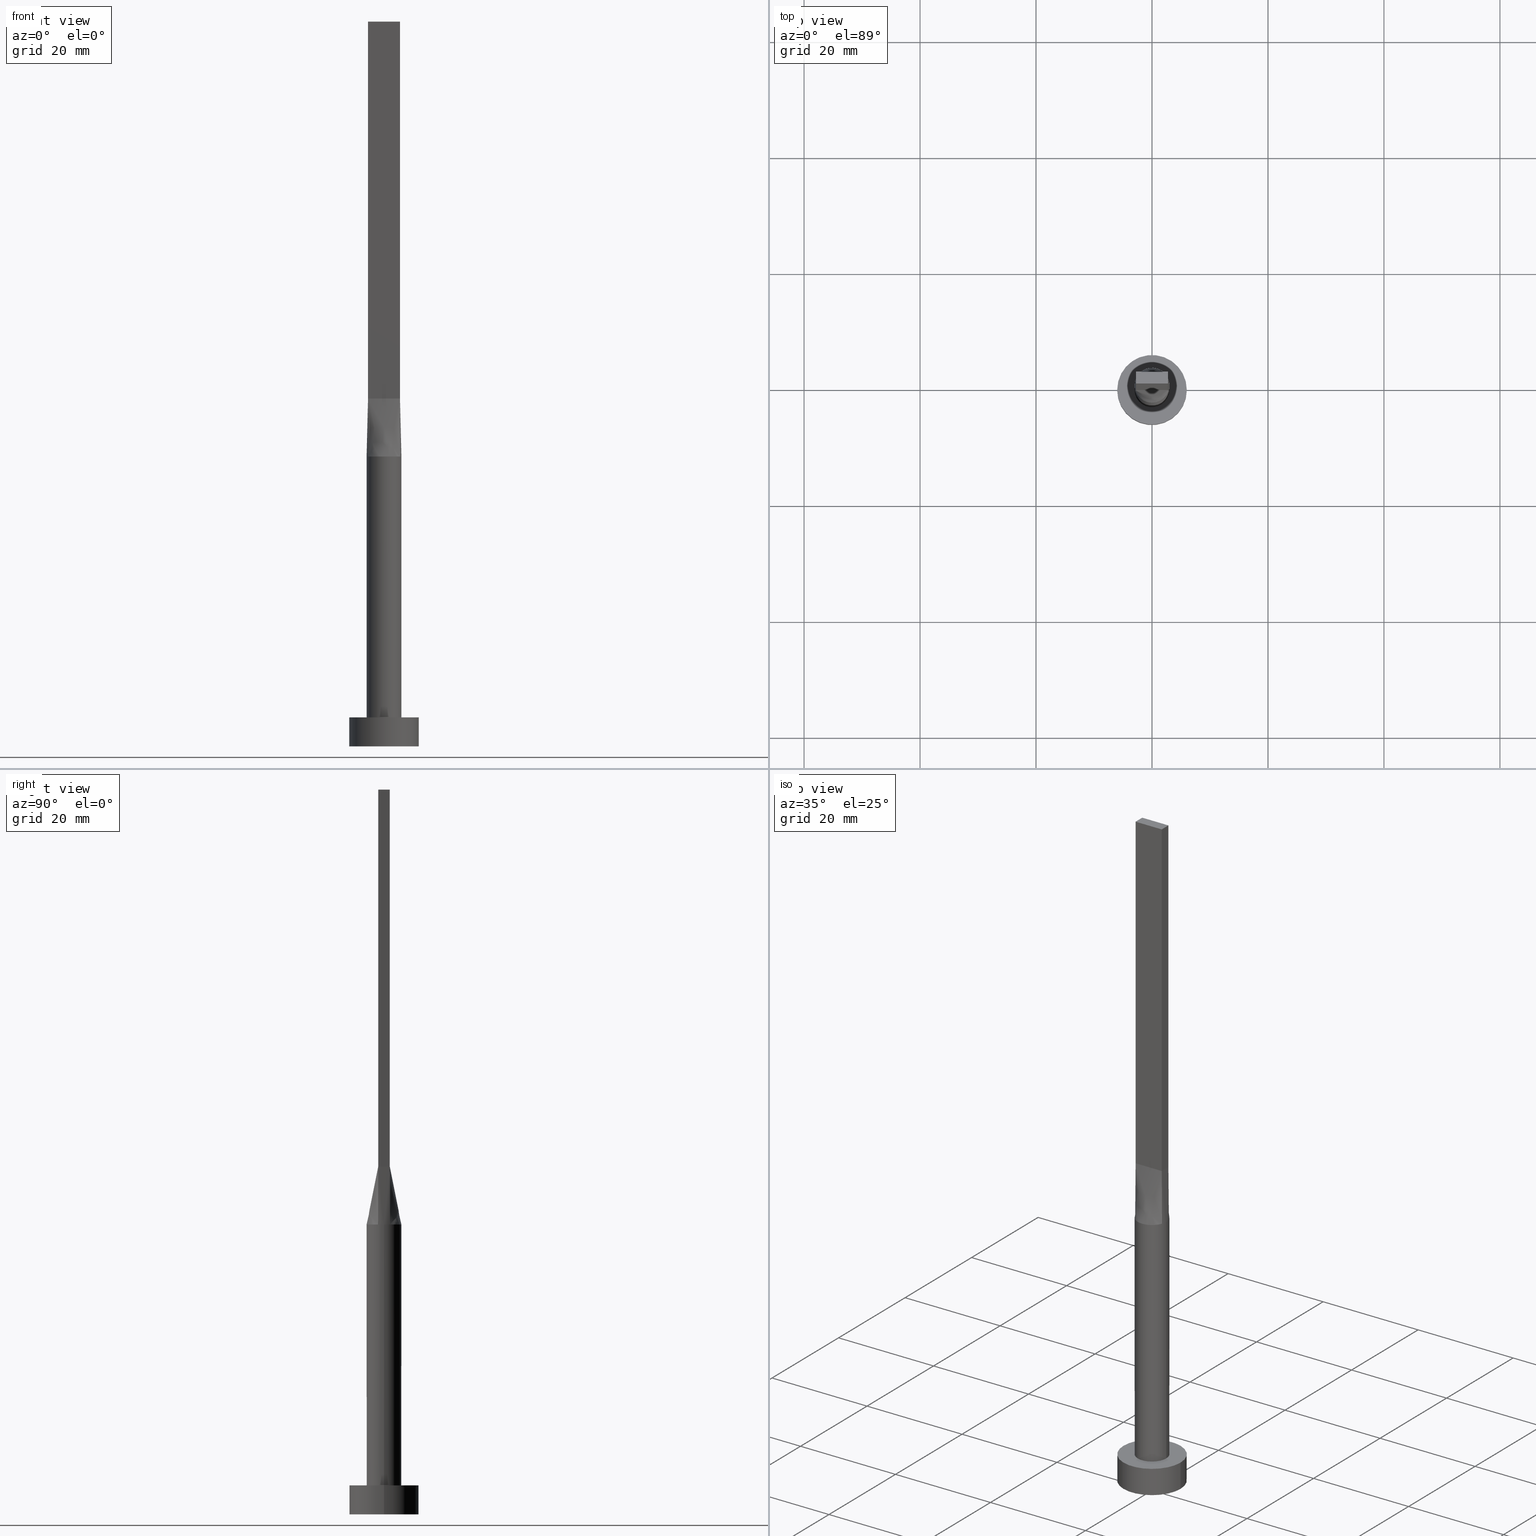
[diagram: canonical four-view strip — front | top / right | iso, engineering-drawing reading convention]
A machine part, canonical four-view strip (front | top / right | iso — engineering-drawing reading convention). The complete STEP part file that produces these views, byte-faithful:
ISO-10303-21;
HEADER;
FILE_DESCRIPTION (( 'STEP AP203' ),
    '1' );
FILE_NAME ('853d.STEP',
    '2023-02-13T10:48:58',
    ( '' ),
    ( '' ),
    'SwSTEP 2.0',
    'SolidWorks 2019',
    '' );
FILE_SCHEMA (( 'CONFIG_CONTROL_DESIGN' ));
ENDSEC;

DATA;
#1 = DIRECTION ( 'NONE',  ( 1.000000000000000000, 0.000000000000000000, 0.000000000000000000 ) ) ;
#2 = CARTESIAN_POINT ( 'NONE',  ( -2.739088299662392423, 1.246032108968142316, 49.99999999999998579 ) ) ;
#3 = VECTOR ( 'NONE', #481, 1000.000000000000000 ) ;
#4 = CARTESIAN_POINT ( 'NONE',  ( -0.9166666666666664076, -0.9999999999999995559, 60.00000000000000000 ) ) ;
#5 = DIRECTION ( 'NONE',  ( 0.000000000000000000, 0.000000000000000000, 1.000000000000000000 ) ) ;
#6 = FACE_OUTER_BOUND ( 'NONE', #76, .T. ) ;
#7 = CARTESIAN_POINT ( 'NONE',  ( 0.000000000000000000, 0.000000000000000000, 0.000000000000000000 ) ) ;
#8 = ADVANCED_FACE ( 'NONE', ( #210 ), #292, .T. ) ;
#9 = CARTESIAN_POINT ( 'NONE',  ( 1.604166666666669183, 1.000000000000000000, 60.00000000000000000 ) ) ;
#10 = VECTOR ( 'NONE', #325, 1000.000000000000000 ) ;
#11 = CARTESIAN_POINT ( 'NONE',  ( -2.784690135232655628, 1.012614594630056430, 54.99999999999999289 ) ) ;
#12 = CARTESIAN_POINT ( 'NONE',  ( -2.750000000000000000, -0.9999999999999993339, 125.0000000000000000 ) ) ;
#13 = FACE_OUTER_BOUND ( 'NONE', #71, .T. ) ;
#14 = AXIS2_PLACEMENT_3D ( 'NONE', #131, #129, #497 ) ;
#15 =( NAMED_UNIT ( * ) SI_UNIT ( $, .STERADIAN. ) SOLID_ANGLE_UNIT ( ) );
#16 = CARTESIAN_POINT ( 'NONE',  ( 2.739088299662392867, 1.246032108968142538, 50.00000000000000711 ) ) ;
#17 = ADVANCED_FACE ( 'NONE', ( #88 ), #264, .T. ) ;
#18 = PLANE ( 'NONE',  #385 ) ;
#19 = CARTESIAN_POINT ( 'NONE',  ( -2.819429393986302657, 1.025247261300842760, 49.99999999999999289 ) ) ;
#20 = CARTESIAN_POINT ( 'NONE',  ( -2.115507543051069916, 2.149870311632977593, 49.99999999999999289 ) ) ;
#21 = DATE_AND_TIME ( #470, #183 ) ;
#22 = VECTOR ( 'NONE', #152, 1000.000000000000000 ) ;
#23 = VERTEX_POINT ( 'NONE', #453 ) ;
#24 = LINE ( 'NONE', #209, #3 ) ;
#25 = DIRECTION ( 'NONE',  ( -0.000000000000000000, -0.000000000000000000, -1.000000000000000000 ) ) ;
#26 = CALENDAR_DATE ( 2023, 13, 2 ) ;
#27 = VERTEX_POINT ( 'NONE', #219 ) ;
#28 = EDGE_CURVE ( 'NONE', #197, #564, #571, .T. ) ;
#29 = CARTESIAN_POINT ( 'NONE',  ( -2.936168591633194769, 0.7040613060484341990, 49.99999999999999289 ) ) ;
#30 = LINE ( 'NONE', #70, #339 ) ;
#31 = ORIENTED_EDGE ( 'NONE', *, *, #239, .T. ) ;
#32 = CARTESIAN_POINT ( 'NONE',  ( 0.000000000000000000, 0.000000000000000000, 125.0000000000000000 ) ) ;
#33 = ORIENTED_EDGE ( 'NONE', *, *, #34, .F. ) ;
#34 = EDGE_CURVE ( 'NONE', #484, #295, #172, .T. ) ;
#35 = LINE ( 'NONE', #201, #376 ) ;
#36 = DATE_AND_TIME ( #422, #258 ) ;
#37 = ORIENTED_EDGE ( 'NONE', *, *, #34, .T. ) ;
#38 = ORIENTED_EDGE ( 'NONE', *, *, #530, .F. ) ;
#39 = CARTESIAN_POINT ( 'NONE',  ( -1.145833333333333037, -0.9999999999999995559, 60.00000000000000000 ) ) ;
#40 = EDGE_CURVE ( 'NONE', #477, #27, #534, .T. ) ;
#41 = VECTOR ( 'NONE', #25, 1000.000000000000000 ) ;
#42 = EDGE_LOOP ( 'NONE', ( #461, #73 ) ) ;
#43 = LINE ( 'NONE', #162, #41 ) ;
#44 = CARTESIAN_POINT ( 'NONE',  ( -2.520833333333333037, -0.9999999999999993339, 60.00000000000000000 ) ) ;
#45 = CARTESIAN_POINT ( 'NONE',  ( -0.2291666666666636321, 1.000000000000000000, 59.99999999999999289 ) ) ;
#46 = CARTESIAN_POINT ( 'NONE',  ( 2.750000000000000000, -1.000000000000000000, 60.00000000000000000 ) ) ;
#47 = CARTESIAN_POINT ( 'NONE',  ( -2.291666666666664742, 1.000000000000000000, 60.00000000000000000 ) ) ;
#48 = EDGE_CURVE ( 'NONE', #373, #477, #252, .T. ) ;
#49 = CARTESIAN_POINT ( 'NONE',  ( -1.604166666666666519, -0.9999999999999995559, 60.00000000000000000 ) ) ;
#50 = PLANE ( 'NONE',  #98 ) ;
#51 = CARTESIAN_POINT ( 'NONE',  ( -2.739088299662392423, 1.246032108968142316, 49.99999999999998579 ) ) ;
#52 = CARTESIAN_POINT ( 'NONE',  ( 2.819430526142641558, -1.025247683279451261, 49.99999999999999289 ) ) ;
#53 = AXIS2_PLACEMENT_3D ( 'NONE', #460, #62, #60 ) ;
#54 = CARTESIAN_POINT ( 'NONE',  ( -0.3502136323054376721, 2.999999999999999112, 50.00000000000001421 ) ) ;
#55 = ORIENTED_EDGE ( 'NONE', *, *, #492, .T. ) ;
#56 = B_SPLINE_SURFACE_WITH_KNOTS ( 'NONE', 3, 1, ( 
 ( #516, #419 ),
 ( #29, #546 ),
 ( #141, #277 ),
 ( #463, #331 ),
 ( #228, #327 ),
 ( #377, #551 ) ),
 .UNSPECIFIED., .F., .F., .F.,
 ( 4, 2, 4 ),
 ( 2, 2 ),
 ( 0.000000000000000000, 0.5000000000000000000, 1.000000000000000000 ),
 ( 0.000000000000000000, 1.000000000000000000 ),
 .UNSPECIFIED. ) ;
#57 = CC_DESIGN_PERSON_AND_ORGANIZATION_ASSIGNMENT ( #247, #333, ( #315 ) ) ;
#58 = CARTESIAN_POINT ( 'NONE',  ( -1.627925520694712747, 2.539128397820341831, 50.00000000000000000 ) ) ;
#59 = CIRCLE ( 'NONE', #442, 3.000000000000000444 ) ;
#60 = DIRECTION ( 'NONE',  ( 2.168404344971009608E-16, 1.000000000000000000, 0.000000000000000000 ) ) ;
#61 = EDGE_LOOP ( 'NONE', ( #375, #65, #296, #137 ) ) ;
#62 = DIRECTION ( 'NONE',  ( 1.000000000000000000, -2.168404344971009608E-16, 0.000000000000000000 ) ) ;
#63 = CARTESIAN_POINT ( 'NONE',  ( 6.000000000000000888, 7.347880794884120722E-16, 5.000000000000000000 ) ) ;
#64 = APPROVAL_ROLE ( '' ) ;
#65 = ORIENTED_EDGE ( 'NONE', *, *, #40, .T. ) ;
#66 = DIRECTION ( 'NONE',  ( -0.000000000000000000, -0.000000000000000000, -1.000000000000000000 ) ) ;
#67 = COORDINATED_UNIVERSAL_TIME_OFFSET ( 1, 0, .AHEAD. ) ;
#68 = ADVANCED_FACE ( 'NONE', ( #262 ), #116, .T. ) ;
#69 = DIRECTION ( 'NONE',  ( -1.000000000000000000, 7.885106708985487801E-17, 0.000000000000000000 ) ) ;
#70 = CARTESIAN_POINT ( 'NONE',  ( -2.750000000000000000, -0.9999999999999993339, 60.00000000000000000 ) ) ;
#71 = EDGE_LOOP ( 'NONE', ( #37, #503, #322, #260 ) ) ;
#72 = CARTESIAN_POINT ( 'NONE',  ( -2.750000000000000000, -0.9999999999999993339, 60.00000000000000000 ) ) ;
#73 = ORIENTED_EDGE ( 'NONE', *, *, #134, .T. ) ;
#74 = EDGE_CURVE ( 'NONE', #515, #253, #147, .T. ) ;
#75 = DIRECTION ( 'NONE',  ( -1.000000000000000000, 0.000000000000000000, 0.000000000000000000 ) ) ;
#76 = EDGE_LOOP ( 'NONE', ( #330, #519, #438, #158 ) ) ;
#77 = EDGE_LOOP ( 'NONE', ( #110, #560, #254, #286, #395 ) ) ;
#78 = EDGE_CURVE ( 'NONE', #120, #484, #181, .T. ) ;
#79 = ORIENTED_EDGE ( 'NONE', *, *, #389, .F. ) ;
#80 = CIRCLE ( 'NONE', #410, 6.000000000000000888 ) ;
#81 = CARTESIAN_POINT ( 'NONE',  ( -2.749999999999999556, 1.000000000000000000, 60.00000000000000000 ) ) ;
#82 = CARTESIAN_POINT ( 'NONE',  ( 0.000000000000000000, 0.000000000000000000, 0.000000000000000000 ) ) ;
#83 = PLANE ( 'NONE',  #314 ) ;
#84 = CARTESIAN_POINT ( 'NONE',  ( 1.145833333333333703, -0.9999999999999995559, 60.00000000000000000 ) ) ;
#85 = CARTESIAN_POINT ( 'NONE',  ( -2.314486317179579977, 1.928337902455808051, 50.00000000000000711 ) ) ;
#86 = CARTESIAN_POINT ( 'NONE',  ( 2.750000000000000000, -0.9999999999999997780, 60.00000000000000000 ) ) ;
#87 = CARTESIAN_POINT ( 'NONE',  ( 2.819380270465311700, 1.025229189260113083, 49.99999999999999289 ) ) ;
#88 = FACE_OUTER_BOUND ( 'NONE', #326, .T. ) ;
#89 = DIRECTION ( 'NONE',  ( 0.000000000000000000, -0.000000000000000000, -1.000000000000000000 ) ) ;
#90 = ORGANIZATION ( 'NEUR�EN�', 'NEUR�EN�', '' ) ;
#91 = CARTESIAN_POINT ( 'NONE',  ( -0.2291666666666662966, -0.9999999999999995559, 60.00000000000000000 ) ) ;
#92 = FACE_OUTER_BOUND ( 'NONE', #392, .T. ) ;
#93 = DIRECTION ( 'NONE',  ( 1.000000000000000000, 0.000000000000000000, 0.000000000000000000 ) ) ;
#94 = CC_DESIGN_PERSON_AND_ORGANIZATION_ASSIGNMENT ( #214, #173, ( #324 ) ) ;
#95 = CARTESIAN_POINT ( 'NONE',  ( 2.314486317179579977, 1.928337902455807384, 50.00000000000001421 ) ) ;
#96 = DIRECTION ( 'NONE',  ( 0.006937837988376408145, -0.002522850177591348404, 0.9999727504442450510 ) ) ;
#97 = VERTEX_POINT ( 'NONE', #142 ) ;
#98 = AXIS2_PLACEMENT_3D ( 'NONE', #533, #541, #89 ) ;
#99 = DIRECTION ( 'NONE',  ( -0.000000000000000000, -0.000000000000000000, -1.000000000000000000 ) ) ;
#100 = DIRECTION ( 'NONE',  ( 0.000000000000000000, 0.000000000000000000, 1.000000000000000000 ) ) ;
#101 = CARTESIAN_POINT ( 'NONE',  ( 2.749999999999999556, 1.000000000000000000, 125.0000000000000000 ) ) ;
#102 = EDGE_CURVE ( 'NONE', #249, #165, #225, .T. ) ;
#103 = FACE_OUTER_BOUND ( 'NONE', #553, .T. ) ;
#104 = COORDINATED_UNIVERSAL_TIME_OFFSET ( 1, 0, .AHEAD. ) ;
#105 = DIRECTION ( 'NONE',  ( -0.000000000000000000, -0.000000000000000000, -1.000000000000000000 ) ) ;
#106 = COORDINATED_UNIVERSAL_TIME_OFFSET ( 1, 0, .AHEAD. ) ;
#107 = ORIENTED_EDGE ( 'NONE', *, *, #381, .F. ) ;
#108 = LOCAL_TIME ( 11, 48, 58.00000000000000000, #168 ) ;
#109 = DIRECTION ( 'NONE',  ( 0.000000000000000000, 0.000000000000000000, 1.000000000000000000 ) ) ;
#110 = ORIENTED_EDGE ( 'NONE', *, *, #381, .T. ) ;
#111 = EDGE_CURVE ( 'NONE', #253, #484, #370, .T. ) ;
#112 = CARTESIAN_POINT ( 'NONE',  ( 2.750000000000000000, -0.9999999999999997780, 125.0000000000000000 ) ) ;
#113 = PERSON_AND_ORGANIZATION_ROLE ( 'creator' ) ;
#114 = EDGE_LOOP ( 'NONE', ( #567, #245, #55, #279 ) ) ;
#115 = ADVANCED_BREP_SHAPE_REPRESENTATION ( '853d', ( #298, #237 ), #248 ) ;
#116 = B_SPLINE_SURFACE_WITH_KNOTS ( 'NONE', 3, 1, ( 
 ( #313, #46 ),
 ( #547, #552 ),
 ( #372, #270 ),
 ( #418, #221 ),
 ( #332, #545 ),
 ( #421, #409 ) ),
 .UNSPECIFIED., .F., .F., .F.,
 ( 4, 2, 4 ),
 ( 2, 2 ),
 ( 0.000000000000000000, 0.5000000000000000000, 1.000000000000000000 ),
 ( 0.000000000000000000, 1.000000000000000000 ),
 .UNSPECIFIED. ) ;
#117 = LINE ( 'NONE', #558, #471 ) ;
#118 = VERTEX_POINT ( 'NONE', #511 ) ;
#119 = VECTOR ( 'NONE', #382, 1000.000000000000000 ) ;
#120 = VERTEX_POINT ( 'NONE', #19 ) ;
#121 = DIRECTION ( 'NONE',  ( 1.000000000000000000, 0.000000000000000000, 0.000000000000000000 ) ) ;
#122 = EDGE_CURVE ( 'NONE', #118, #120, #549, .T. ) ;
#123 = CARTESIAN_POINT ( 'NONE',  ( 2.115507543051068140, -2.149870311632976705, 49.99999999999997868 ) ) ;
#124 = AXIS2_PLACEMENT_3D ( 'NONE', #32, #343, #568 ) ;
#125 = CARTESIAN_POINT ( 'NONE',  ( 2.819380270465311700, -1.025229189260112417, 49.99999999999999289 ) ) ;
#126 = CARTESIAN_POINT ( 'NONE',  ( 2.291666666666667407, 1.000000000000000000, 60.00000000000000000 ) ) ;
#127 = CARTESIAN_POINT ( 'NONE',  ( 0.6998073349918603192, -2.936959335800557902, 50.00000000000000000 ) ) ;
#128 = EDGE_CURVE ( 'NONE', #564, #197, #80, .T. ) ;
#129 = DIRECTION ( 'NONE',  ( -0.000000000000000000, -0.000000000000000000, -1.000000000000000000 ) ) ;
#130 = CARTESIAN_POINT ( 'NONE',  ( 0.4583333333333337034, -0.9999999999999995559, 60.00000000000000000 ) ) ;
#131 = CARTESIAN_POINT ( 'NONE',  ( 0.000000000000000000, 0.000000000000000000, 5.000000000000000000 ) ) ;
#132 = CARTESIAN_POINT ( 'NONE',  ( 2.520833333333333037, -1.000000000000000000, 60.00000000000000000 ) ) ;
#133 = CARTESIAN_POINT ( 'NONE',  ( -1.604166666666663410, 1.000000000000000000, 60.00000000000000000 ) ) ;
#134 = EDGE_CURVE ( 'NONE', #167, #23, #561, .T. ) ;
#135 = CC_DESIGN_APPROVAL ( #171, ( #565 ) ) ;
#136 = CARTESIAN_POINT ( 'NONE',  ( -2.819429393986302657, 1.025247261300842760, 49.99999999999999289 ) ) ;
#137 = ORIENTED_EDGE ( 'NONE', *, *, #335, .T. ) ;
#138 = CARTESIAN_POINT ( 'NONE',  ( -1.338960936578149408, 2.706038443291637119, 49.99999999999998579 ) ) ;
#139 = CARTESIAN_POINT ( 'NONE',  ( -3.000000000000000444, 0.000000000000000000, 49.99999999999999289 ) ) ;
#140 = ORIENTED_EDGE ( 'NONE', *, *, #111, .F. ) ;
#141 = CARTESIAN_POINT ( 'NONE',  ( -3.000000000000000444, 0.3523499553598127276, 49.99999999999998579 ) ) ;
#142 = CARTESIAN_POINT ( 'NONE',  ( 3.000000000000000444, 7.514166843208513631E-18, 49.99999999999998579 ) ) ;
#143 = VERTEX_POINT ( 'NONE', #274 ) ;
#144 = PLANE ( 'NONE',  #146 ) ;
#145 = CIRCLE ( 'NONE', #490, 3.000000000000000444 ) ;
#146 = AXIS2_PLACEMENT_3D ( 'NONE', #509, #100, #280 ) ;
#147 = LINE ( 'NONE', #101, #180 ) ;
#148 = ADVANCED_FACE ( 'NONE', ( #13 ), #184, .F. ) ;
#149 = CARTESIAN_POINT ( 'NONE',  ( 2.819412401233197141, 1.025240989080170362, 49.99999999999999289 ) ) ;
#150 = PERSON_AND_ORGANIZATION ( #268, #90 ) ;
#151 = ORIENTED_EDGE ( 'NONE', *, *, #250, .T. ) ;
#152 = DIRECTION ( 'NONE',  ( -2.168404344971008868E-16, 1.000000000000000000, 0.000000000000000000 ) ) ;
#153 = ORIENTED_EDGE ( 'NONE', *, *, #299, .T. ) ;
#154 = APPROVAL ( #487, 'NEUR�EN�' ) ;
#155 = DIRECTION ( 'NONE',  ( 0.000000000000000000, 0.000000000000000000, 1.000000000000000000 ) ) ;
#156 = APPROVAL_DATE_TIME ( #559, #154 ) ;
#157 = AXIS2_PLACEMENT_3D ( 'NONE', #170, #105, #287 ) ;
#158 = ORIENTED_EDGE ( 'NONE', *, *, #456, .F. ) ;
#159 = APPROVAL_PERSON_ORGANIZATION ( #202, #171, #512 ) ;
#160 = CARTESIAN_POINT ( 'NONE',  ( 0.000000000000000000, 0.000000000000000000, 49.99999999999999289 ) ) ;
#161 = ORIENTED_EDGE ( 'NONE', *, *, #525, .T. ) ;
#162 = CARTESIAN_POINT ( 'NONE',  ( 3.000000000000000444, 3.673940397442059868E-16, 49.99999999999999289 ) ) ;
#163 = EDGE_LOOP ( 'NONE', ( #241, #153, #436, #194, #524, #251 ) ) ;
#164 = DESIGN_CONTEXT ( 'detailed design', #365, 'design' ) ;
#165 = VERTEX_POINT ( 'NONE', #227 ) ;
#166 = ADVANCED_FACE ( 'NONE', ( #420, #374 ), #18, .T. ) ;
#167 = VERTEX_POINT ( 'NONE', #63 ) ;
#168 = COORDINATED_UNIVERSAL_TIME_OFFSET ( 1, 0, .AHEAD. ) ;
#169 = CARTESIAN_POINT ( 'NONE',  ( 0.9166666666666669627, -0.9999999999999995559, 60.00000000000000000 ) ) ;
#170 = CARTESIAN_POINT ( 'NONE',  ( 0.000000000000000000, 0.000000000000000000, 49.99999999999999289 ) ) ;
#171 = APPROVAL ( #347, 'NEUR�EN�' ) ;
#172 = LINE ( 'NONE', #81, #439 ) ;
#173 = PERSON_AND_ORGANIZATION_ROLE ( 'design_owner' ) ;
#174 = CARTESIAN_POINT ( 'NONE',  ( 2.625980160873452540, 1.476334031700886618, 50.00000000000000711 ) ) ;
#175 = CARTESIAN_POINT ( 'NONE',  ( -2.819380270465311700, -1.025229189260111973, 49.99999999999999289 ) ) ;
#176 = DIRECTION ( 'NONE',  ( 0.000000000000000000, 0.000000000000000000, 1.000000000000000000 ) ) ;
#177 = CARTESIAN_POINT ( 'NONE',  ( -2.625980160873452096, 1.476334031700886396, 50.00000000000000711 ) ) ;
#178 = DIRECTION ( 'NONE',  ( -0.006937837988376364777, 0.002522850177591326286, 0.9999727504442450510 ) ) ;
#179 = CARTESIAN_POINT ( 'NONE',  ( -2.749999999999999556, 1.000000000000000000, 60.00000000000000000 ) ) ;
#180 = VECTOR ( 'NONE', #190, 1000.000000000000000 ) ;
#181 = LINE ( 'NONE', #11, #224 ) ;
#182 = DIRECTION ( 'NONE',  ( 1.000000000000000000, -7.885106708985487801E-17, 0.000000000000000000 ) ) ;
#183 = LOCAL_TIME ( 11, 48, 58.00000000000000000, #104 ) ;
#184 = PLANE ( 'NONE',  #53 ) ;
#185 = CARTESIAN_POINT ( 'NONE',  ( 0.3502136323054376721, 3.000000000000000444, 50.00000000000000000 ) ) ;
#186 = CARTESIAN_POINT ( 'NONE',  ( 0.000000000000000000, 0.000000000000000000, 5.000000000000000000 ) ) ;
#187 = CARTESIAN_POINT ( 'NONE',  ( 1.338960936578149630, 2.706038443291637563, 50.00000000000000000 ) ) ;
#188 = CC_DESIGN_PERSON_AND_ORGANIZATION_ASSIGNMENT ( #285, #113, ( #315 ) ) ;
#189 = EDGE_LOOP ( 'NONE', ( #344, #527, #572, #444 ) ) ;
#190 = DIRECTION ( 'NONE',  ( -1.000000000000000000, 0.000000000000000000, 0.000000000000000000 ) ) ;
#191 = ORIENTED_EDGE ( 'NONE', *, *, #269, .T. ) ;
#192 = DIRECTION ( 'NONE',  ( 1.000000000000000000, -1.776356839400250465E-15, 0.000000000000000000 ) ) ;
#193 = APPROVAL_DATE_TIME ( #21, #171 ) ;
#194 = ORIENTED_EDGE ( 'NONE', *, *, #102, .F. ) ;
#195 = PRODUCT_DEFINITION ( 'NEZN�M�', '', #315, #164 ) ;
#196 = CARTESIAN_POINT ( 'NONE',  ( 0.000000000000000000, 0.000000000000000000, 49.99999999999999289 ) ) ;
#197 = VERTEX_POINT ( 'NONE', #232 ) ;
#198 = PLANE ( 'NONE',  #124 ) ;
#199 = DATE_AND_TIME ( #26, #266 ) ;
#200 = ORIENTED_EDGE ( 'NONE', *, *, #312, .T. ) ;
#201 = CARTESIAN_POINT ( 'NONE',  ( 6.000000000000000888, 7.347880794884120722E-16, 5.000000000000000000 ) ) ;
#202 = PERSON_AND_ORGANIZATION ( #268, #90 ) ;
#203 = ORIENTED_EDGE ( 'NONE', *, *, #102, .T. ) ;
#204 = ORIENTED_EDGE ( 'NONE', *, *, #128, .F. ) ;
#205 = ADVANCED_FACE ( 'NONE', ( #489 ), #198, .T. ) ;
#206 = AXIS2_PLACEMENT_3D ( 'NONE', #494, #217, #361 ) ;
#207 = CARTESIAN_POINT ( 'NONE',  ( -2.750000000000000000, -0.9999999999999993339, 60.00000000000000000 ) ) ;
#208 = CIRCLE ( 'NONE', #405, 3.000000000000000444 ) ;
#209 = CARTESIAN_POINT ( 'NONE',  ( 2.749999999999999556, 1.000000000000000000, 60.00000000000000000 ) ) ;
#210 = FACE_OUTER_BOUND ( 'NONE', #61, .T. ) ;
#211 = LINE ( 'NONE', #259, #119 ) ;
#212 = EDGE_CURVE ( 'NONE', #350, #27, #291, .T. ) ;
#213 = CARTESIAN_POINT ( 'NONE',  ( 2.739088299662391979, -1.246032108968142982, 50.00000000000000711 ) ) ;
#214 = PERSON_AND_ORGANIZATION ( #268, #90 ) ;
#215 = CARTESIAN_POINT ( 'NONE',  ( 0.000000000000000000, 0.000000000000000000, 49.99999999999999289 ) ) ;
#216 = CARTESIAN_POINT ( 'NONE',  ( -1.145833333333329929, 1.000000000000000000, 60.00000000000000000 ) ) ;
#217 = DIRECTION ( 'NONE',  ( 0.000000000000000000, 0.000000000000000000, 1.000000000000000000 ) ) ;
#218 = CARTESIAN_POINT ( 'NONE',  ( 1.627925520694712080, 2.539128397820340943, 49.99999999999998579 ) ) ;
#219 = CARTESIAN_POINT ( 'NONE',  ( 2.750000000000000000, -0.9999999999999997780, 60.00000000000000000 ) ) ;
#220 = CARTESIAN_POINT ( 'NONE',  ( -2.819380270465311700, 1.025229189260112861, 49.99999999999999289 ) ) ;
#221 = CARTESIAN_POINT ( 'NONE',  ( 2.749999999999999556, 0.3333333333333328707, 59.99999999999999289 ) ) ;
#222 = EDGE_CURVE ( 'NONE', #97, #118, #145, .T. ) ;
#223 = LINE ( 'NONE', #12, #499 ) ;
#224 = VECTOR ( 'NONE', #96, 1000.000000000000227 ) ;
#225 = LINE ( 'NONE', #139, #10 ) ;
#226 = CARTESIAN_POINT ( 'NONE',  ( 0.000000000000000000, 0.000000000000000000, 5.000000000000000000 ) ) ;
#227 = CARTESIAN_POINT ( 'NONE',  ( -3.000000000000000444, 0.000000000000000000, 5.000000000000000000 ) ) ;
#228 = CARTESIAN_POINT ( 'NONE',  ( -2.936168591633195657, -0.7040613060484334218, 50.00000000000000000 ) ) ;
#229 = ADVANCED_FACE ( 'NONE', ( #103 ), #83, .F. ) ;
#230 = CARTESIAN_POINT ( 'NONE',  ( 2.739088299662392867, 1.246032108968142538, 50.00000000000000711 ) ) ;
#231 = EDGE_LOOP ( 'NONE', ( #432, #31, #387, #33, #480 ) ) ;
#232 = CARTESIAN_POINT ( 'NONE',  ( 6.000000000000000888, 7.347880794884120722E-16, 0.000000000000000000 ) ) ;
#233 = DATE_TIME_ROLE ( 'classification_date' ) ;
#234 = ORIENTED_EDGE ( 'NONE', *, *, #239, .F. ) ;
#235 = CARTESIAN_POINT ( 'NONE',  ( 2.749999999999999556, 1.000000000000000000, 125.0000000000000000 ) ) ;
#236 = VECTOR ( 'NONE', #386, 1000.000000000000000 ) ;
#237 = AXIS2_PLACEMENT_3D ( 'NONE', #82, #580, #121 ) ;
#238 = DIRECTION ( 'NONE',  ( -0.000000000000000000, -0.000000000000000000, -1.000000000000000000 ) ) ;
#239 = EDGE_CURVE ( 'NONE', #249, #373, #526, .T. ) ;
#240 = LINE ( 'NONE', #336, #452 ) ;
#241 = ORIENTED_EDGE ( 'NONE', *, *, #222, .F. ) ;
#242 = FACE_OUTER_BOUND ( 'NONE', #231, .T. ) ;
#243 = CARTESIAN_POINT ( 'NONE',  ( -2.749999999999999556, 1.000000000000000000, 125.0000000000000000 ) ) ;
#244 = DATE_AND_TIME ( #563, #416 ) ;
#245 = ORIENTED_EDGE ( 'NONE', *, *, #352, .T. ) ;
#246 = LINE ( 'NONE', #302, #22 ) ;
#247 = PERSON_AND_ORGANIZATION ( #268, #90 ) ;
#248 =( GEOMETRIC_REPRESENTATION_CONTEXT ( 3 ) GLOBAL_UNCERTAINTY_ASSIGNED_CONTEXT ( ( #575 ) ) GLOBAL_UNIT_ASSIGNED_CONTEXT ( ( #362, #415, #15 ) ) REPRESENTATION_CONTEXT ( 'NONE', 'WORKASPACE' ) );
#249 = VERTEX_POINT ( 'NONE', #518 ) ;
#250 = EDGE_CURVE ( 'NONE', #167, #197, #35, .T. ) ;
#251 = ORIENTED_EDGE ( 'NONE', *, *, #122, .F. ) ;
#252 = CIRCLE ( 'NONE', #206, 3.000000000000000444 ) ;
#253 = VERTEX_POINT ( 'NONE', #243 ) ;
#254 = ORIENTED_EDGE ( 'NONE', *, *, #456, .T. ) ;
#255 = MECHANICAL_CONTEXT ( 'NONE', #536, 'mechanical' ) ;
#256 = VECTOR ( 'NONE', #427, 1000.000000000000000 ) ;
#257 = EDGE_CURVE ( 'NONE', #23, #564, #211, .T. ) ;
#258 = LOCAL_TIME ( 11, 48, 58.00000000000000000, #67 ) ;
#259 = CARTESIAN_POINT ( 'NONE',  ( -6.000000000000000888, 0.000000000000000000, 5.000000000000000000 ) ) ;
#260 = ORIENTED_EDGE ( 'NONE', *, *, #111, .T. ) ;
#261 = DIRECTION ( 'NONE',  ( -0.000000000000000000, -0.000000000000000000, -1.000000000000000000 ) ) ;
#262 = FACE_OUTER_BOUND ( 'NONE', #77, .T. ) ;
#263 = CARTESIAN_POINT ( 'NONE',  ( 2.520833333333333037, 1.000000000000000000, 60.00000000000000000 ) ) ;
#264 = CYLINDRICAL_SURFACE ( 'NONE', #539, 6.000000000000000888 ) ;
#265 = AXIS2_PLACEMENT_3D ( 'NONE', #479, #238, #75 ) ;
#266 = LOCAL_TIME ( 11, 48, 58.00000000000000000, #106 ) ;
#267 = CARTESIAN_POINT ( 'NONE',  ( -0.3502136323054376721, 2.999999999999999112, 50.00000000000001421 ) ) ;
#268 = PERSON ( 'NEUR�EN�', 'NEUR�EN�', 'NEUR�EN�', ('NEUR�EN�'), ('NEUR�EN�'), ('NEUR�EN�') ) ;
#269 = EDGE_CURVE ( 'NONE', #384, #484, #117, .T. ) ;
#270 = CARTESIAN_POINT ( 'NONE',  ( 2.750000000000000000, -0.3333333333333337589, 59.99999999999999289 ) ) ;
#271 = CARTESIAN_POINT ( 'NONE',  ( -2.750000000000000000, -0.9999999999999993339, 125.0000000000000000 ) ) ;
#272 = CARTESIAN_POINT ( 'NONE',  ( 2.314486317179579977, 1.928337902455807384, 50.00000000000001421 ) ) ;
#273 = CARTESIAN_POINT ( 'NONE',  ( -2.520833333333332593, 1.000000000000000000, 60.00000000000000000 ) ) ;
#274 = CARTESIAN_POINT ( 'NONE',  ( -2.750000000000000000, -0.9999999999999993339, 125.0000000000000000 ) ) ;
#275 = ORIENTED_EDGE ( 'NONE', *, *, #212, .T. ) ;
#276 = CC_DESIGN_DATE_AND_TIME_ASSIGNMENT ( #36, #233, ( #565 ) ) ;
#277 = CARTESIAN_POINT ( 'NONE',  ( -2.749999999999999556, 0.3333333333333338144, 59.99999999999999289 ) ) ;
#278 = CARTESIAN_POINT ( 'NONE',  ( -1.627925520694712747, 2.539128397820341831, 50.00000000000000000 ) ) ;
#279 = ORIENTED_EDGE ( 'NONE', *, *, #389, .T. ) ;
#280 = DIRECTION ( 'NONE',  ( 1.000000000000000000, 0.000000000000000000, -0.000000000000000000 ) ) ;
#281 = CARTESIAN_POINT ( 'NONE',  ( -2.625980160873452096, 1.476334031700886396, 50.00000000000000711 ) ) ;
#282 = PERSON_AND_ORGANIZATION ( #268, #90 ) ;
#283 = ORIENTED_EDGE ( 'NONE', *, *, #28, .F. ) ;
#284 = DIRECTION ( 'NONE',  ( 1.000000000000000000, 0.000000000000000000, 0.000000000000000000 ) ) ;
#285 = PERSON_AND_ORGANIZATION ( #268, #90 ) ;
#286 = ORIENTED_EDGE ( 'NONE', *, *, #525, .F. ) ;
#287 = DIRECTION ( 'NONE',  ( -1.000000000000000000, 0.000000000000000000, 0.000000000000000000 ) ) ;
#288 = ORIENTED_EDGE ( 'NONE', *, *, #74, .F. ) ;
#289 = CARTESIAN_POINT ( 'NONE',  ( 0.000000000000000000, 0.000000000000000000, 49.99999999999999289 ) ) ;
#290 = ORIENTED_EDGE ( 'NONE', *, *, #257, .T. ) ;
#291 = LINE ( 'NONE', #394, #236 ) ;
#292 = B_SPLINE_SURFACE_WITH_KNOTS ( 'NONE', 3, 1, ( 
 ( #175, #207 ),
 ( #450, #44 ),
 ( #407, #399 ),
 ( #446, #353 ),
 ( #354, #49 ),
 ( #498, #39 ),
 ( #309, #4 ),
 ( #404, #358 ),
 ( #397, #91 ),
 ( #537, #576 ),
 ( #127, #130 ),
 ( #579, #169 ),
 ( #528, #84 ),
 ( #123, #496 ),
 ( #531, #540 ),
 ( #301, #401 ),
 ( #213, #132 ),
 ( #125, #86 ) ),
 .UNSPECIFIED., .F., .F., .F.,
 ( 4, 2, 2, 2, 2, 2, 2, 2, 4 ),
 ( 2, 2 ),
 ( 0.000000000000000000, 0.1250000000000000000, 0.2500000000000000000, 0.3750000000000000000, 0.5000000000000000000, 0.6250000000000000000, 0.7500000000000000000, 0.8750000000000000000, 1.000000000000000000 ),
 ( 0.000000000000000000, 1.000000000000000000 ),
 .UNSPECIFIED. ) ;
#293 = ORIENTED_EDGE ( 'NONE', *, *, #28, .T. ) ;
#294 = ADVANCED_FACE ( 'NONE', ( #340 ), #476, .T. ) ;
#295 = VERTEX_POINT ( 'NONE', #72 ) ;
#296 = ORIENTED_EDGE ( 'NONE', *, *, #411, .F. ) ;
#297 = PERSON_AND_ORGANIZATION ( #268, #90 ) ;
#298 = MANIFOLD_SOLID_BREP ( 'P�idat vysunut�m5', #478 ) ;
#299 = EDGE_CURVE ( 'NONE', #97, #428, #43, .T. ) ;
#300 = AXIS2_PLACEMENT_3D ( 'NONE', #502, #505, #93 ) ;
#301 = CARTESIAN_POINT ( 'NONE',  ( 2.625980160873452984, -1.476334031700886618, 50.00000000000000711 ) ) ;
#302 = CARTESIAN_POINT ( 'NONE',  ( 2.750000000000000000, -0.9999999999999997780, 125.0000000000000000 ) ) ;
#303 = VECTOR ( 'NONE', #523, 1000.000000000000000 ) ;
#304 = DIRECTION ( 'NONE',  ( -1.000000000000000000, 0.000000000000000000, 0.000000000000000000 ) ) ;
#305 = CARTESIAN_POINT ( 'NONE',  ( 0.2291666666666696550, 1.000000000000000000, 60.00000000000000000 ) ) ;
#306 = CARTESIAN_POINT ( 'NONE',  ( 2.784690135232656072, -1.012614594630056208, 54.99999999999999289 ) ) ;
#307 = DIRECTION ( 'NONE',  ( 1.000000000000000000, 0.000000000000000000, 0.000000000000000000 ) ) ;
#308 = CARTESIAN_POINT ( 'NONE',  ( 2.115507543051069916, 2.149870311632976705, 50.00000000000000711 ) ) ;
#309 = CARTESIAN_POINT ( 'NONE',  ( -1.338960936578150518, -2.706038443291638007, 50.00000000000000000 ) ) ;
#310 = VECTOR ( 'NONE', #178, 1000.000000000000227 ) ;
#311 = CARTESIAN_POINT ( 'NONE',  ( 2.749999999999999556, 1.000000000000000000, 60.00000000000000000 ) ) ;
#312 = EDGE_CURVE ( 'NONE', #515, #384, #430, .T. ) ;
#313 = CARTESIAN_POINT ( 'NONE',  ( 2.819380270465311700, -1.025229189260113083, 49.99999999999999289 ) ) ;
#314 = AXIS2_PLACEMENT_3D ( 'NONE', #112, #562, #445 ) ;
#315 = PRODUCT_DEFINITION_FORMATION_WITH_SPECIFIED_SOURCE ( 'LIBOVOLN�', '', #324, .NOT_KNOWN. ) ;
#316 = DIRECTION ( 'NONE',  ( 1.000000000000000000, 0.000000000000000000, 0.000000000000000000 ) ) ;
#317 = CARTESIAN_POINT ( 'NONE',  ( -2.314486317179579977, 1.928337902455808051, 50.00000000000000711 ) ) ;
#318 = ORIENTED_EDGE ( 'NONE', *, *, #250, .F. ) ;
#319 = DIRECTION ( 'NONE',  ( 1.000000000000000000, -7.885106708985487801E-17, 0.000000000000000000 ) ) ;
#320 = CARTESIAN_POINT ( 'NONE',  ( 0.000000000000000000, 0.000000000000000000, 0.000000000000000000 ) ) ;
#321 = CC_DESIGN_PERSON_AND_ORGANIZATION_ASSIGNMENT ( #150, #435, ( #565 ) ) ;
#322 = ORIENTED_EDGE ( 'NONE', *, *, #352, .F. ) ;
#323 = PLANE ( 'NONE',  #443 ) ;
#324 = PRODUCT ( '853d', '853d', '', ( #255 ) ) ;
#325 = DIRECTION ( 'NONE',  ( -0.000000000000000000, -0.000000000000000000, -1.000000000000000000 ) ) ;
#326 = EDGE_LOOP ( 'NONE', ( #318, #506, #290, #348 ) ) ;
#327 = CARTESIAN_POINT ( 'NONE',  ( -2.750000000000000000, -0.6666666666666657415, 59.99999999999999289 ) ) ;
#328 = AXIS2_PLACEMENT_3D ( 'NONE', #215, #176, #307 ) ;
#329 = DIRECTION ( 'NONE',  ( 0.000000000000000000, 0.000000000000000000, 1.000000000000000000 ) ) ;
#330 = ORIENTED_EDGE ( 'NONE', *, *, #122, .T. ) ;
#331 = CARTESIAN_POINT ( 'NONE',  ( -2.750000000000000000, -0.3333333333333324822, 59.99999999999999289 ) ) ;
#332 = CARTESIAN_POINT ( 'NONE',  ( 2.936168591633195657, 0.7040613060484338659, 50.00000000000000000 ) ) ;
#333 = PERSON_AND_ORGANIZATION_ROLE ( 'design_supplier' ) ;
#334 = VECTOR ( 'NONE', #99, 1000.000000000000000 ) ;
#335 = EDGE_CURVE ( 'NONE', #295, #373, #240, .T. ) ;
#336 = CARTESIAN_POINT ( 'NONE',  ( -2.784690135232656072, -1.012614594630055764, 54.99999999999999289 ) ) ;
#337 = ORIENTED_EDGE ( 'NONE', *, *, #48, .F. ) ;
#338 = DIRECTION ( 'NONE',  ( 7.885106708985487801E-17, 1.000000000000000000, -0.000000000000000000 ) ) ;
#339 = VECTOR ( 'NONE', #319, 1000.000000000000000 ) ;
#340 = FACE_OUTER_BOUND ( 'NONE', #163, .T. ) ;
#341 = PERSON_AND_ORGANIZATION ( #268, #90 ) ;
#342 = EDGE_LOOP ( 'NONE', ( #474, #107, #337, #234, #203, #486 ) ) ;
#343 = DIRECTION ( 'NONE',  ( 0.000000000000000000, 0.000000000000000000, 1.000000000000000000 ) ) ;
#344 = ORIENTED_EDGE ( 'NONE', *, *, #411, .T. ) ;
#345 = APPROVAL ( #466, 'NEUR�EN�' ) ;
#346 = CARTESIAN_POINT ( 'NONE',  ( 2.749999999999999556, 1.000000000000000000, 125.0000000000000000 ) ) ;
#347 = APPROVAL_STATUS ( 'not_yet_approved' ) ;
#348 = ORIENTED_EDGE ( 'NONE', *, *, #128, .T. ) ;
#349 = CIRCLE ( 'NONE', #328, 3.000000000000000444 ) ;
#350 = VERTEX_POINT ( 'NONE', #390 ) ;
#351 = APPLICATION_PROTOCOL_DEFINITION ( 'international standard', 'config_control_design', 1994, #365 ) ;
#352 = EDGE_CURVE ( 'NONE', #253, #143, #355, .T. ) ;
#353 = CARTESIAN_POINT ( 'NONE',  ( -1.833333333333333037, -0.9999999999999995559, 60.00000000000000000 ) ) ;
#354 = CARTESIAN_POINT ( 'NONE',  ( -2.115507543051069472, -2.149870311632975373, 49.99999999999999289 ) ) ;
#355 = LINE ( 'NONE', #566, #256 ) ;
#356 = DIRECTION ( 'NONE',  ( -2.168404344971009854E-16, -1.000000000000000000, 0.000000000000000000 ) ) ;
#357 = CARTESIAN_POINT ( 'NONE',  ( 2.784690135232655628, 1.012614594630056430, 54.99999999999999289 ) ) ;
#358 = CARTESIAN_POINT ( 'NONE',  ( -0.4583333333333330373, -0.9999999999999995559, 60.00000000000000000 ) ) ;
#359 = CARTESIAN_POINT ( 'NONE',  ( -6.000000000000000888, 0.000000000000000000, 0.000000000000000000 ) ) ;
#360 = CARTESIAN_POINT ( 'NONE',  ( -0.6998073349918608743, 2.936959335800557014, 50.00000000000000000 ) ) ;
#361 = DIRECTION ( 'NONE',  ( 1.000000000000000000, 0.000000000000000000, 0.000000000000000000 ) ) ;
#362 =( LENGTH_UNIT ( ) NAMED_UNIT ( * ) SI_UNIT ( .MILLI., .METRE. ) );
#363 = DIRECTION ( 'NONE',  ( 0.000000000000000000, 0.000000000000000000, 1.000000000000000000 ) ) ;
#364 = CARTESIAN_POINT ( 'NONE',  ( 2.625980160873452540, 1.476334031700886618, 50.00000000000000711 ) ) ;
#365 = APPLICATION_CONTEXT ( 'configuration controlled 3d designs of mechanical parts and assemblies' ) ;
#366 = ORIENTED_EDGE ( 'NONE', *, *, #134, .F. ) ;
#367 = CIRCLE ( 'NONE', #472, 6.000000000000000888 ) ;
#368 = FACE_OUTER_BOUND ( 'NONE', #189, .T. ) ;
#369 = CC_DESIGN_DATE_AND_TIME_ASSIGNMENT ( #199, #431, ( #195 ) ) ;
#370 = LINE ( 'NONE', #464, #334 ) ;
#371 = CARTESIAN_POINT ( 'NONE',  ( -2.750000000000000000, -0.9999999999999993339, 125.0000000000000000 ) ) ;
#372 = CARTESIAN_POINT ( 'NONE',  ( 3.000000000000000444, -0.3523499553598126721, 49.99999999999998579 ) ) ;
#373 = VERTEX_POINT ( 'NONE', #469 ) ;
#374 = FACE_OUTER_BOUND ( 'NONE', #42, .T. ) ;
#375 = ORIENTED_EDGE ( 'NONE', *, *, #48, .T. ) ;
#376 = VECTOR ( 'NONE', #66, 1000.000000000000000 ) ;
#377 = CARTESIAN_POINT ( 'NONE',  ( -2.819380270465311700, -1.025229189260112195, 49.99999999999999289 ) ) ;
#378 = CARTESIAN_POINT ( 'NONE',  ( -0.6998073349918608743, 2.936959335800557014, 50.00000000000000000 ) ) ;
#379 = APPROVAL_DATE_TIME ( #244, #345 ) ;
#380 = EDGE_LOOP ( 'NONE', ( #191, #140, #288, #200 ) ) ;
#381 = EDGE_CURVE ( 'NONE', #477, #97, #59, .T. ) ;
#382 = DIRECTION ( 'NONE',  ( -0.000000000000000000, -0.000000000000000000, -1.000000000000000000 ) ) ;
#383 = SHAPE_DEFINITION_REPRESENTATION ( #393, #115 ) ;
#384 = VERTEX_POINT ( 'NONE', #521 ) ;
#385 = AXIS2_PLACEMENT_3D ( 'NONE', #186, #329, #510 ) ;
#386 = DIRECTION ( 'NONE',  ( -0.000000000000000000, -0.000000000000000000, -1.000000000000000000 ) ) ;
#387 = ORIENTED_EDGE ( 'NONE', *, *, #335, .F. ) ;
#388 = CC_DESIGN_APPROVAL ( #345, ( #315 ) ) ;
#389 = EDGE_CURVE ( 'NONE', #350, #515, #246, .T. ) ;
#390 = CARTESIAN_POINT ( 'NONE',  ( 2.750000000000000000, -0.9999999999999997780, 125.0000000000000000 ) ) ;
#391 = PERSON_AND_ORGANIZATION_ROLE ( 'creator' ) ;
#392 = EDGE_LOOP ( 'NONE', ( #366, #151, #293, #522 ) ) ;
#393 = PRODUCT_DEFINITION_SHAPE ( 'NONE', 'NONE',  #195 ) ;
#394 = CARTESIAN_POINT ( 'NONE',  ( 2.750000000000000000, -0.9999999999999997780, 125.0000000000000000 ) ) ;
#395 = ORIENTED_EDGE ( 'NONE', *, *, #40, .F. ) ;
#396 = EDGE_LOOP ( 'NONE', ( #467, #38 ) ) ;
#397 = CARTESIAN_POINT ( 'NONE',  ( -0.3502136323054380052, -3.000000000000000888, 50.00000000000000000 ) ) ;
#398 = APPROVAL_ROLE ( '' ) ;
#399 = CARTESIAN_POINT ( 'NONE',  ( -2.291666666666666519, -0.9999999999999995559, 60.00000000000000000 ) ) ;
#400 = DIRECTION ( 'NONE',  ( -0.006937837988376364777, -0.002522850177591326286, -0.9999727504442450510 ) ) ;
#401 = CARTESIAN_POINT ( 'NONE',  ( 2.291666666666666519, -1.000000000000000000, 60.00000000000000000 ) ) ;
#402 = CARTESIAN_POINT ( 'NONE',  ( -1.833333333333330373, 1.000000000000000000, 60.00000000000000000 ) ) ;
#403 = ADVANCED_FACE ( 'NONE', ( #514 ), #581, .T. ) ;
#404 = CARTESIAN_POINT ( 'NONE',  ( -0.6998073349918614294, -2.936959335800558346, 49.99999999999998579 ) ) ;
#405 = AXIS2_PLACEMENT_3D ( 'NONE', #226, #363, #316 ) ;
#406 = CARTESIAN_POINT ( 'NONE',  ( 0.6998073349918605413, 2.936959335800557014, 49.99999999999998579 ) ) ;
#407 = CARTESIAN_POINT ( 'NONE',  ( -2.625980160873452540, -1.476334031700885507, 49.99999999999998579 ) ) ;
#408 = CARTESIAN_POINT ( 'NONE',  ( 1.338960936578149630, 2.706038443291637563, 50.00000000000000000 ) ) ;
#409 = CARTESIAN_POINT ( 'NONE',  ( 2.749999999999999556, 1.000000000000000000, 60.00000000000000000 ) ) ;
#410 = AXIS2_PLACEMENT_3D ( 'NONE', #320, #555, #413 ) ;
#411 = EDGE_CURVE ( 'NONE', #295, #27, #30, .T. ) ;
#412 = CARTESIAN_POINT ( 'NONE',  ( 0.9166666666666699603, 1.000000000000000000, 60.00000000000000000 ) ) ;
#413 = DIRECTION ( 'NONE',  ( 1.000000000000000000, 0.000000000000000000, 0.000000000000000000 ) ) ;
#414 = ORIENTED_EDGE ( 'NONE', *, *, #312, .F. ) ;
#415 =( NAMED_UNIT ( * ) PLANE_ANGLE_UNIT ( ) SI_UNIT ( $, .RADIAN. ) );
#416 = LOCAL_TIME ( 11, 48, 58.00000000000000000, #426 ) ;
#417 = CARTESIAN_POINT ( 'NONE',  ( 3.000000000000000444, 3.673940397442059868E-16, 5.000000000000000000 ) ) ;
#418 = CARTESIAN_POINT ( 'NONE',  ( 3.000000000000000444, 0.3523499553598119505, 49.99999999999998579 ) ) ;
#419 = CARTESIAN_POINT ( 'NONE',  ( -2.749999999999999556, 1.000000000000000000, 60.00000000000000000 ) ) ;
#420 = FACE_BOUND ( 'NONE', #396, .T. ) ;
#421 = CARTESIAN_POINT ( 'NONE',  ( 2.819380270465311700, 1.025229189260112639, 49.99999999999999289 ) ) ;
#422 = CALENDAR_DATE ( 2023, 13, 2 ) ;
#423 = EDGE_CURVE ( 'NONE', #143, #295, #504, .T. ) ;
#424 = APPROVAL_PERSON_ORGANIZATION ( #297, #154, #398 ) ;
#425 = DIRECTION ( 'NONE',  ( -1.000000000000000000, -0.000000000000000000, -0.000000000000000000 ) ) ;
#426 = COORDINATED_UNIVERSAL_TIME_OFFSET ( 1, 0, .AHEAD. ) ;
#427 = DIRECTION ( 'NONE',  ( -2.168404344971009854E-16, -1.000000000000000000, 0.000000000000000000 ) ) ;
#428 = VERTEX_POINT ( 'NONE', #417 ) ;
#429 = ADVANCED_FACE ( 'NONE', ( #457 ), #50, .F. ) ;
#430 = LINE ( 'NONE', #346, #303 ) ;
#431 = DATE_TIME_ROLE ( 'creation_date' ) ;
#432 = ORIENTED_EDGE ( 'NONE', *, *, #557, .T. ) ;
#433 = VECTOR ( 'NONE', #544, 1000.000000000000227 ) ;
#434 = DIRECTION ( 'NONE',  ( 1.000000000000000000, 0.000000000000000000, 0.000000000000000000 ) ) ;
#435 = PERSON_AND_ORGANIZATION_ROLE ( 'classification_officer' ) ;
#436 = ORIENTED_EDGE ( 'NONE', *, *, #530, .T. ) ;
#437 = B_SPLINE_SURFACE_WITH_KNOTS ( 'NONE', 3, 1, ( 
 ( #87, #311 ),
 ( #16, #263 ),
 ( #174, #126 ),
 ( #95, #459 ),
 ( #308, #9 ),
 ( #218, #448 ),
 ( #408, #412 ),
 ( #406, #451 ),
 ( #185, #305 ),
 ( #267, #45 ),
 ( #360, #454 ),
 ( #138, #493 ),
 ( #58, #216 ),
 ( #495, #133 ),
 ( #85, #402 ),
 ( #177, #47 ),
 ( #2, #273 ),
 ( #220, #500 ) ),
 .UNSPECIFIED., .F., .F., .F.,
 ( 4, 2, 2, 2, 2, 2, 2, 2, 4 ),
 ( 2, 2 ),
 ( 0.000000000000000000, 0.1249999999999998890, 0.2499999999999997780, 0.3749999999999997780, 0.4999999999999997780, 0.6249999999999997780, 0.7499999999999997780, 0.8749999999999998890, 1.000000000000000000 ),
 ( 0.000000000000000000, 1.000000000000000000 ),
 .UNSPECIFIED. ) ;
#438 = ORIENTED_EDGE ( 'NONE', *, *, #269, .F. ) ;
#439 = VECTOR ( 'NONE', #356, 1000.000000000000000 ) ;
#440 = CARTESIAN_POINT ( 'NONE',  ( 0.000000000000000000, 0.000000000000000000, 5.000000000000000000 ) ) ;
#441 = ADVANCED_FACE ( 'NONE', ( #6 ), #437, .T. ) ;
#442 = AXIS2_PLACEMENT_3D ( 'NONE', #160, #473, #192 ) ;
#443 = AXIS2_PLACEMENT_3D ( 'NONE', #371, #338, #69 ) ;
#444 = ORIENTED_EDGE ( 'NONE', *, *, #423, .T. ) ;
#445 = DIRECTION ( 'NONE',  ( 2.168404344971008621E-16, -1.000000000000000000, 0.000000000000000000 ) ) ;
#446 = CARTESIAN_POINT ( 'NONE',  ( -2.314486317179578645, -1.928337902455806496, 49.99999999999998579 ) ) ;
#447 = DIRECTION ( 'NONE',  ( 1.000000000000000000, 0.000000000000000000, 0.000000000000000000 ) ) ;
#448 = CARTESIAN_POINT ( 'NONE',  ( 1.145833333333336368, 1.000000000000000000, 60.00000000000000000 ) ) ;
#449 = PRODUCT_RELATED_PRODUCT_CATEGORY ( 'detail', '', ( #324 ) ) ;
#450 = CARTESIAN_POINT ( 'NONE',  ( -2.739088299662391979, -1.246032108968140983, 49.99999999999999289 ) ) ;
#451 = CARTESIAN_POINT ( 'NONE',  ( 0.4583333333333366455, 1.000000000000000000, 60.00000000000000000 ) ) ;
#452 = VECTOR ( 'NONE', #400, 1000.000000000000227 ) ;
#453 = CARTESIAN_POINT ( 'NONE',  ( -6.000000000000000888, 0.000000000000000000, 5.000000000000000000 ) ) ;
#454 = CARTESIAN_POINT ( 'NONE',  ( -0.4583333333333299286, 1.000000000000000000, 59.99999999999999289 ) ) ;
#455 = CARTESIAN_POINT ( 'NONE',  ( 0.3502136323054376721, 3.000000000000000444, 50.00000000000000000 ) ) ;
#456 = EDGE_CURVE ( 'NONE', #118, #384, #538, .T. ) ;
#457 = FACE_OUTER_BOUND ( 'NONE', #380, .T. ) ;
#458 = CARTESIAN_POINT ( 'NONE',  ( 2.115507543051069916, 2.149870311632976705, 50.00000000000000711 ) ) ;
#459 = CARTESIAN_POINT ( 'NONE',  ( 1.833333333333335258, 1.000000000000000000, 60.00000000000000000 ) ) ;
#460 = CARTESIAN_POINT ( 'NONE',  ( -2.749999999999999556, 1.000000000000000000, 125.0000000000000000 ) ) ;
#461 = ORIENTED_EDGE ( 'NONE', *, *, #548, .T. ) ;
#462 = CC_DESIGN_APPROVAL ( #154, ( #195 ) ) ;
#463 = CARTESIAN_POINT ( 'NONE',  ( -3.000000000000000444, -0.3523499553598117839, 49.99999999999998579 ) ) ;
#464 = CARTESIAN_POINT ( 'NONE',  ( -2.749999999999999556, 1.000000000000000000, 125.0000000000000000 ) ) ;
#465 = CARTESIAN_POINT ( 'NONE',  ( 0.6998073349918605413, 2.936959335800557014, 49.99999999999998579 ) ) ;
#466 = APPROVAL_STATUS ( 'not_yet_approved' ) ;
#467 = ORIENTED_EDGE ( 'NONE', *, *, #485, .F. ) ;
#468 = FACE_OUTER_BOUND ( 'NONE', #570, .T. ) ;
#469 = CARTESIAN_POINT ( 'NONE',  ( -2.819413526938078896, -1.025241406939938926, 49.99999999999999289 ) ) ;
#470 = CALENDAR_DATE ( 2023, 13, 2 ) ;
#471 = VECTOR ( 'NONE', #425, 1000.000000000000000 ) ;
#472 = AXIS2_PLACEMENT_3D ( 'NONE', #532, #5, #447 ) ;
#473 = DIRECTION ( 'NONE',  ( 0.000000000000000000, 0.000000000000000000, 1.000000000000000000 ) ) ;
#474 = ORIENTED_EDGE ( 'NONE', *, *, #299, .F. ) ;
#475 = ADVANCED_FACE ( 'NONE', ( #92 ), #535, .T. ) ;
#476 = CYLINDRICAL_SURFACE ( 'NONE', #265, 3.000000000000000444 ) ;
#477 = VERTEX_POINT ( 'NONE', #52 ) ;
#478 = CLOSED_SHELL ( 'NONE', ( #294, #475, #17, #166, #513, #403, #8, #68, #508, #441, #429, #148, #501, #229, #205 ) ) ;
#479 = CARTESIAN_POINT ( 'NONE',  ( 0.000000000000000000, 0.000000000000000000, 49.99999999999999289 ) ) ;
#480 = ORIENTED_EDGE ( 'NONE', *, *, #78, .F. ) ;
#481 = DIRECTION ( 'NONE',  ( -2.168404344971008868E-16, 1.000000000000000000, -0.000000000000000000 ) ) ;
#482 = AXIS2_PLACEMENT_3D ( 'NONE', #289, #155, #434 ) ;
#483 = CC_DESIGN_SECURITY_CLASSIFICATION ( #565, ( #315 ) ) ;
#484 = VERTEX_POINT ( 'NONE', #179 ) ;
#485 = EDGE_CURVE ( 'NONE', #165, #428, #208, .T. ) ;
#486 = ORIENTED_EDGE ( 'NONE', *, *, #485, .T. ) ;
#487 = APPROVAL_STATUS ( 'not_yet_approved' ) ;
#488 = DIRECTION ( 'NONE',  ( -0.000000000000000000, -0.000000000000000000, -1.000000000000000000 ) ) ;
#489 = FACE_OUTER_BOUND ( 'NONE', #114, .T. ) ;
#490 = AXIS2_PLACEMENT_3D ( 'NONE', #196, #109, #284 ) ;
#491 = DIRECTION ( 'NONE',  ( 0.000000000000000000, 0.000000000000000000, 1.000000000000000000 ) ) ;
#492 = EDGE_CURVE ( 'NONE', #143, #350, #223, .T. ) ;
#493 = CARTESIAN_POINT ( 'NONE',  ( -0.9166666666666629659, 1.000000000000000000, 59.99999999999999289 ) ) ;
#494 = CARTESIAN_POINT ( 'NONE',  ( 0.000000000000000000, 0.000000000000000000, 49.99999999999999289 ) ) ;
#495 = CARTESIAN_POINT ( 'NONE',  ( -2.115507543051069916, 2.149870311632977593, 49.99999999999999289 ) ) ;
#496 = CARTESIAN_POINT ( 'NONE',  ( 1.604166666666666963, -0.9999999999999997780, 60.00000000000000000 ) ) ;
#497 = DIRECTION ( 'NONE',  ( -1.000000000000000000, 0.000000000000000000, 0.000000000000000000 ) ) ;
#498 = CARTESIAN_POINT ( 'NONE',  ( -1.627925520694712525, -2.539128397820340055, 49.99999999999998579 ) ) ;
#499 = VECTOR ( 'NONE', #182, 1000.000000000000000 ) ;
#500 = CARTESIAN_POINT ( 'NONE',  ( -2.749999999999999556, 1.000000000000000000, 60.00000000000000000 ) ) ;
#501 = ADVANCED_FACE ( 'NONE', ( #368 ), #323, .F. ) ;
#502 = CARTESIAN_POINT ( 'NONE',  ( 0.000000000000000000, 0.000000000000000000, 5.000000000000000000 ) ) ;
#503 = ORIENTED_EDGE ( 'NONE', *, *, #423, .F. ) ;
#504 = LINE ( 'NONE', #271, #574 ) ;
#505 = DIRECTION ( 'NONE',  ( 0.000000000000000000, 0.000000000000000000, 1.000000000000000000 ) ) ;
#506 = ORIENTED_EDGE ( 'NONE', *, *, #548, .F. ) ;
#507 = CARTESIAN_POINT ( 'NONE',  ( 1.627925520694712080, 2.539128397820340943, 49.99999999999998579 ) ) ;
#508 = ADVANCED_FACE ( 'NONE', ( #242 ), #56, .T. ) ;
#509 = CARTESIAN_POINT ( 'NONE',  ( 0.000000000000000000, 0.000000000000000000, 0.000000000000000000 ) ) ;
#510 = DIRECTION ( 'NONE',  ( 1.000000000000000000, 0.000000000000000000, -0.000000000000000000 ) ) ;
#511 = CARTESIAN_POINT ( 'NONE',  ( 2.819412401233197141, 1.025240989080170362, 49.99999999999999289 ) ) ;
#512 = APPROVAL_ROLE ( '' ) ;
#513 = ADVANCED_FACE ( 'NONE', ( #468 ), #144, .F. ) ;
#514 = FACE_OUTER_BOUND ( 'NONE', #342, .T. ) ;
#515 = VERTEX_POINT ( 'NONE', #235 ) ;
#516 = CARTESIAN_POINT ( 'NONE',  ( -2.819380270465311700, 1.025229189260112861, 49.99999999999999289 ) ) ;
#517 = APPROVAL_PERSON_ORGANIZATION ( #282, #345, #64 ) ;
#518 = CARTESIAN_POINT ( 'NONE',  ( -3.000000000000000444, -1.370010780910362699E-16, 49.99999999999998579 ) ) ;
#519 = ORIENTED_EDGE ( 'NONE', *, *, #78, .T. ) ;
#520 = DIRECTION ( 'NONE',  ( 1.000000000000000000, 0.000000000000000000, 0.000000000000000000 ) ) ;
#521 = CARTESIAN_POINT ( 'NONE',  ( 2.749999999999999556, 1.000000000000000000, 60.00000000000000000 ) ) ;
#522 = ORIENTED_EDGE ( 'NONE', *, *, #257, .F. ) ;
#523 = DIRECTION ( 'NONE',  ( -0.000000000000000000, -0.000000000000000000, -1.000000000000000000 ) ) ;
#524 = ORIENTED_EDGE ( 'NONE', *, *, #557, .F. ) ;
#525 = EDGE_CURVE ( 'NONE', #27, #384, #24, .T. ) ;
#526 = CIRCLE ( 'NONE', #482, 3.000000000000000444 ) ;
#527 = ORIENTED_EDGE ( 'NONE', *, *, #212, .F. ) ;
#528 = CARTESIAN_POINT ( 'NONE',  ( 1.627925520694712080, -2.539128397820341831, 50.00000000000000000 ) ) ;
#529 = DIRECTION ( 'NONE',  ( 0.000000000000000000, 0.000000000000000000, 1.000000000000000000 ) ) ;
#530 = EDGE_CURVE ( 'NONE', #428, #165, #543, .T. ) ;
#531 = CARTESIAN_POINT ( 'NONE',  ( 2.314486317179579533, -1.928337902455807606, 50.00000000000000000 ) ) ;
#532 = CARTESIAN_POINT ( 'NONE',  ( 0.000000000000000000, 0.000000000000000000, 5.000000000000000000 ) ) ;
#533 = CARTESIAN_POINT ( 'NONE',  ( 2.749999999999999556, 1.000000000000000000, 125.0000000000000000 ) ) ;
#534 = LINE ( 'NONE', #306, #310 ) ;
#535 = CYLINDRICAL_SURFACE ( 'NONE', #14, 6.000000000000000888 ) ;
#536 = APPLICATION_CONTEXT ( 'configuration controlled 3d designs of mechanical parts and assemblies' ) ;
#537 = CARTESIAN_POINT ( 'NONE',  ( 0.3502136323054372835, -3.000000000000000444, 49.99999999999998579 ) ) ;
#538 = LINE ( 'NONE', #357, #433 ) ;
#539 = AXIS2_PLACEMENT_3D ( 'NONE', #440, #488, #304 ) ;
#540 = CARTESIAN_POINT ( 'NONE',  ( 1.833333333333333481, -1.000000000000000000, 60.00000000000000000 ) ) ;
#541 = DIRECTION ( 'NONE',  ( 0.000000000000000000, -1.000000000000000000, 0.000000000000000000 ) ) ;
#542 = CARTESIAN_POINT ( 'NONE',  ( -1.338960936578149408, 2.706038443291637119, 49.99999999999998579 ) ) ;
#543 = CIRCLE ( 'NONE', #554, 3.000000000000000444 ) ;
#544 = DIRECTION ( 'NONE',  ( -0.006937837988376408145, -0.002522850177591326286, 0.9999727504442450510 ) ) ;
#545 = CARTESIAN_POINT ( 'NONE',  ( 2.749999999999999556, 0.6666666666666662966, 59.99999999999999289 ) ) ;
#546 = CARTESIAN_POINT ( 'NONE',  ( -2.749999999999999556, 0.6666666666666669627, 59.99999999999999289 ) ) ;
#547 = CARTESIAN_POINT ( 'NONE',  ( 2.936168591633194769, -0.7040613060484341990, 49.99999999999999289 ) ) ;
#548 = EDGE_CURVE ( 'NONE', #23, #167, #367, .T. ) ;
#549 = B_SPLINE_CURVE_WITH_KNOTS ( 'NONE', 3,
 ( #149, #230, #364, #272, #458, #507, #187, #465, #455, #54, #378, #542, #278, #20, #317, #281, #51, #136 ),
 .UNSPECIFIED., .F., .F.,
 ( 4, 2, 2, 2, 2, 2, 2, 2, 4 ),
 ( 0.000000000000000000, 0.1249999999999998890, 0.2499999999999997780, 0.3749999999999997780, 0.4999999999999997780, 0.6249999999999997780, 0.7499999999999997780, 0.8749999999999998890, 1.000000000000000000 ),
 .UNSPECIFIED. ) ;
#550 = AXIS2_PLACEMENT_3D ( 'NONE', #7, #491, #1 ) ;
#551 = CARTESIAN_POINT ( 'NONE',  ( -2.750000000000000000, -0.9999999999999991118, 60.00000000000000000 ) ) ;
#552 = CARTESIAN_POINT ( 'NONE',  ( 2.750000000000000000, -0.6666666666666669627, 59.99999999999999289 ) ) ;
#553 = EDGE_LOOP ( 'NONE', ( #161, #414, #79, #275 ) ) ;
#554 = AXIS2_PLACEMENT_3D ( 'NONE', #577, #529, #520 ) ;
#555 = DIRECTION ( 'NONE',  ( 0.000000000000000000, 0.000000000000000000, 1.000000000000000000 ) ) ;
#556 = CALENDAR_DATE ( 2023, 13, 2 ) ;
#557 = EDGE_CURVE ( 'NONE', #120, #249, #349, .T. ) ;
#558 = CARTESIAN_POINT ( 'NONE',  ( -2.749999999999999556, 1.000000000000000000, 60.00000000000000000 ) ) ;
#559 = DATE_AND_TIME ( #556, #108 ) ;
#560 = ORIENTED_EDGE ( 'NONE', *, *, #222, .T. ) ;
#561 = CIRCLE ( 'NONE', #300, 6.000000000000000888 ) ;
#562 = DIRECTION ( 'NONE',  ( -1.000000000000000000, -2.168404344971008621E-16, 0.000000000000000000 ) ) ;
#563 = CALENDAR_DATE ( 2023, 13, 2 ) ;
#564 = VERTEX_POINT ( 'NONE', #359 ) ;
#565 = SECURITY_CLASSIFICATION ( '', '', #569 ) ;
#566 = CARTESIAN_POINT ( 'NONE',  ( -2.749999999999999556, 1.000000000000000000, 125.0000000000000000 ) ) ;
#567 = ORIENTED_EDGE ( 'NONE', *, *, #74, .T. ) ;
#568 = DIRECTION ( 'NONE',  ( 1.000000000000000000, 0.000000000000000000, -0.000000000000000000 ) ) ;
#569 = SECURITY_CLASSIFICATION_LEVEL ( 'unclassified' ) ;
#570 = EDGE_LOOP ( 'NONE', ( #204, #283 ) ) ;
#571 = CIRCLE ( 'NONE', #550, 6.000000000000000888 ) ;
#572 = ORIENTED_EDGE ( 'NONE', *, *, #492, .F. ) ;
#573 = APPLICATION_PROTOCOL_DEFINITION ( 'international standard', 'config_control_design', 1994, #536 ) ;
#574 = VECTOR ( 'NONE', #261, 1000.000000000000000 ) ;
#575 = UNCERTAINTY_MEASURE_WITH_UNIT (LENGTH_MEASURE( 1.000000000000000082E-05 ), #362, 'distance_accuracy_value', 'NONE');
#576 = CARTESIAN_POINT ( 'NONE',  ( 0.2291666666666670460, -0.9999999999999995559, 60.00000000000000000 ) ) ;
#577 = CARTESIAN_POINT ( 'NONE',  ( 0.000000000000000000, 0.000000000000000000, 5.000000000000000000 ) ) ;
#578 = CC_DESIGN_PERSON_AND_ORGANIZATION_ASSIGNMENT ( #341, #391, ( #195 ) ) ;
#579 = CARTESIAN_POINT ( 'NONE',  ( 1.338960936578149630, -2.706038443291638007, 49.99999999999998579 ) ) ;
#580 = DIRECTION ( 'NONE',  ( 0.000000000000000000, 0.000000000000000000, 1.000000000000000000 ) ) ;
#581 = CYLINDRICAL_SURFACE ( 'NONE', #157, 3.000000000000000444 ) ;
ENDSEC;
END-ISO-10303-21;
